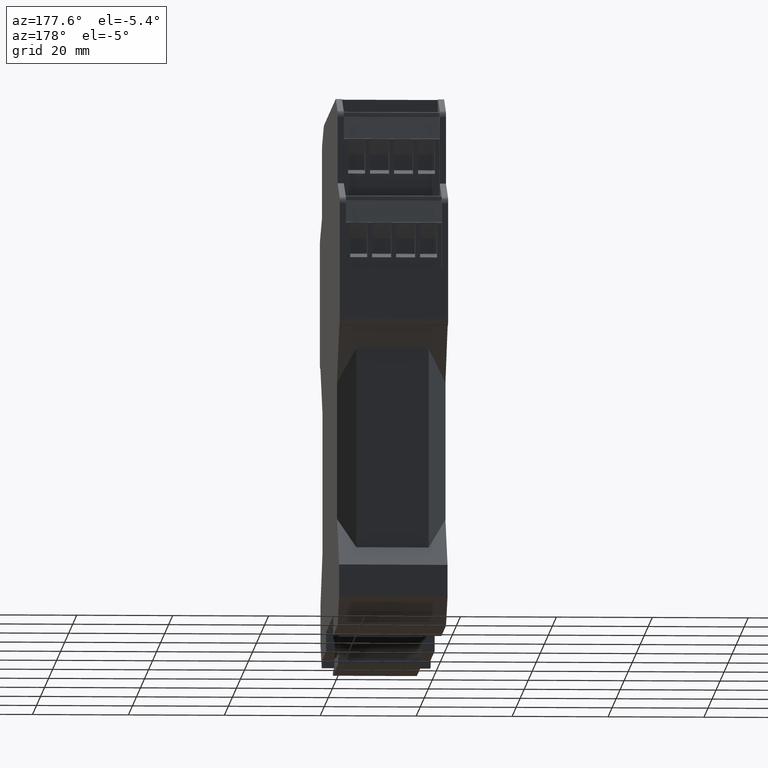
[diagram: clean part render]
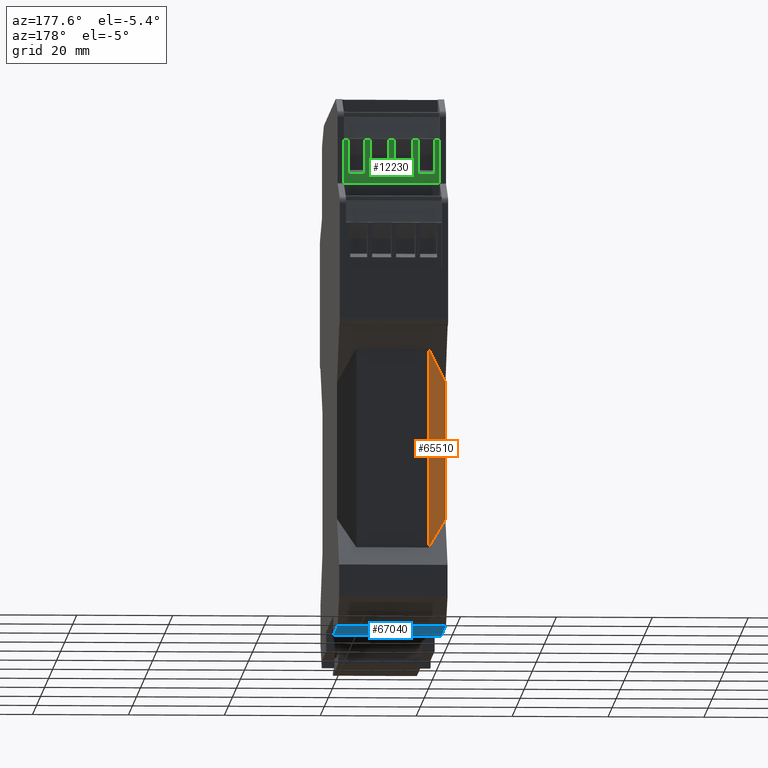
[diagram: same view with three faces highlighted in distinct colors, each labeled with its STEP entity id]
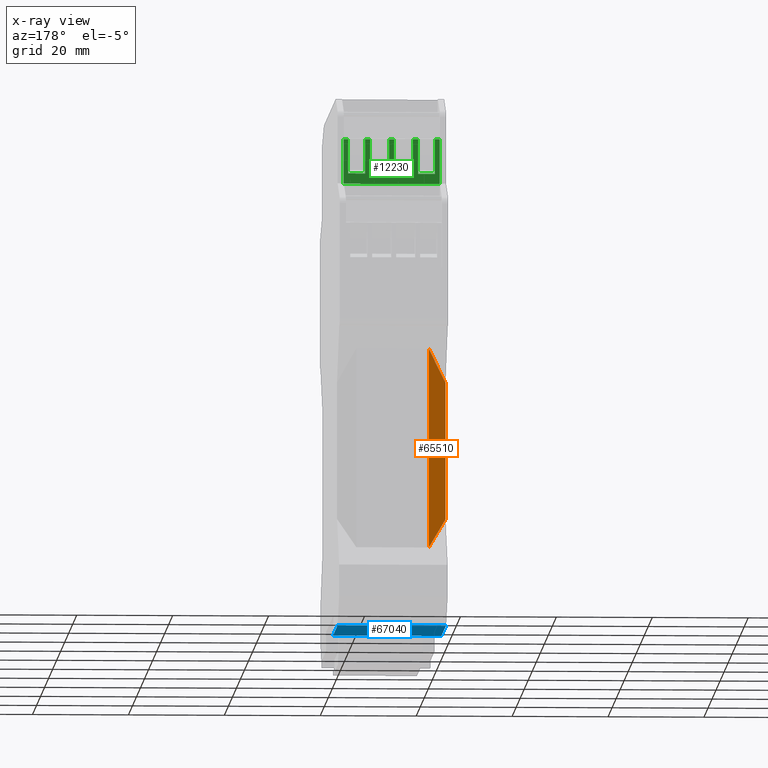
[diagram: x-ray of the same camera — body ghosted, the three highlighted faces saturated]
A machine part, auxiliary view with three faces highlighted in distinct colors.
The next image is the same camera in x-ray (body ghosted, the three faces saturated) — at least one of them is partly hidden behind the body in this view.
Their STEP definitions:

[orange] entity #65510 — the highlighted planar face has unit normal (0.866, -0.5, 0).
#5840=CARTESIAN_POINT('',(36.0500000000917,18.4999999999992,
7.105427357601E-15));
#5850=VERTEX_POINT('',#5840);
#5880=CARTESIAN_POINT('',(36.0500000000919,-7.99999999993773,
7.105427357601E-15));
#5890=DIRECTION('',(0.,1.,0.));
#5900=VECTOR('',#5890,1.);
#5910=LINE('',#5880,#5900);
#5920=CARTESIAN_POINT('',(36.0500000000917,47.1000000000001,
7.105427357601E-15));
#5930=VERTEX_POINT('',#5920);
#5940=EDGE_CURVE('',#5850,#5930,#5910,.T.);
#7250=CARTESIAN_POINT('',(-6.67910171614494E-13,11.049999999908,
-20.8134772043393));
#7260=DIRECTION('',(0.65465367070798,0.654653670707975,0.377964473009226
));
#7270=VECTOR('',#7260,1.);
#7280=LINE('',#7250,#7270);
#7290=CARTESIAN_POINT('',(42.5500000000901,53.5999999999984,
3.75277674973149));
#7300=VERTEX_POINT('',#7290);
#7310=EDGE_CURVE('',#5930,#7300,#7280,.T.);
#65280=CARTESIAN_POINT('',(13.2355117767439,53.7000000000007,
-13.1719509171734));
#65290=DIRECTION('',(-0.499999999999997,0.,0.86602540378444));
#65300=DIRECTION('',(0.86602540378444,0.,0.499999999999997));
#65310=AXIS2_PLACEMENT_3D('',#65280,#65290,#65300);
#65320=PLANE('',#65310);
#65330=ORIENTED_EDGE('',*,*,#7310,.T.);
#65340=ORIENTED_EDGE('',*,*,#5940,.T.);
#65350=CARTESIAN_POINT('',(-6.67910171614494E-13,54.5500000000849,
-20.8134772043393));
#65360=DIRECTION('',(-0.65465367070803,0.654653670707909,
-0.377964473009255));
#65370=VECTOR('',#65360,1.);
#65380=LINE('',#65350,#65370);
#65390=CARTESIAN_POINT('',(42.5500000000903,12.0000000000018,
3.75277674973165));
#65400=VERTEX_POINT('',#65390);
#65410=EDGE_CURVE('',#65400,#5850,#65380,.T.);
#65420=ORIENTED_EDGE('',*,*,#65410,.T.);
#65430=CARTESIAN_POINT('',(42.5500000000904,-7.99999999993773,
3.75277674973174));
#65440=DIRECTION('',(6.60000000000172E-15,-1.,3.8105117766525E-15));
#65450=VECTOR('',#65440,1.);
#65460=LINE('',#65430,#65450);
#65470=EDGE_CURVE('',#7300,#65400,#65460,.T.);
#65480=ORIENTED_EDGE('',*,*,#65470,.T.);
#65490=EDGE_LOOP('',(#65480,#65420,#65340,#65330));
#65500=FACE_OUTER_BOUND('',#65490,.T.);
#65510=ADVANCED_FACE('',(#65500),#65320,.F.);

[blue] entity #67040 — the highlighted planar face has unit normal (-0, -0, -1).
#2580=CARTESIAN_POINT('',(38.8380007636762,-3.99999999999967,22.6));
#2590=VERTEX_POINT('',#2580);
#2620=CARTESIAN_POINT('',(9.37568990868644E-11,-3.99999999999915,22.6));
#2630=DIRECTION('',(-1.,0.,0.));
#2640=VECTOR('',#2630,1.);
#2650=LINE('',#2620,#2640);
#2660=CARTESIAN_POINT('',(16.0000000000944,-3.99999999999915,22.6));
#2670=VERTEX_POINT('',#2660);
#2680=EDGE_CURVE('',#2590,#2670,#2650,.T.);
#5520=CARTESIAN_POINT('',(16.0000000000944,-3.99999999999915,
7.105427357601E-15));
#5530=VERTEX_POINT('',#5520);
#5560=CARTESIAN_POINT('',(-1.39195321935404E-11,-3.99999999999915,
3.5527136788005E-15));
#5570=DIRECTION('',(1.,0.,1.22460635382238E-16));
#5580=VECTOR('',#5570,1.);
#5590=LINE('',#5560,#5580);
#5600=CARTESIAN_POINT('',(38.8380007636769,-3.99999999999915,
7.105427357601E-15));
#5610=VERTEX_POINT('',#5600);
#5620=EDGE_CURVE('',#5530,#5610,#5590,.T.);
#66520=CARTESIAN_POINT('',(38.8380007636769,-3.99999999999915,26.4));
#66530=DIRECTION('',(0.,0.,-1.));
#66540=VECTOR('',#66530,1.);
#66550=LINE('',#66520,#66540);
#66560=EDGE_CURVE('',#2590,#5610,#66550,.T.);
#66880=CARTESIAN_POINT('',(16.0000000000944,-3.99999999999915,22.6));
#66890=DIRECTION('',(-0.,-1.,-0.));
#66900=DIRECTION('',(-1.,0.,0.));
#66910=AXIS2_PLACEMENT_3D('',#66880,#66890,#66900);
#66920=PLANE('',#66910);
#66930=ORIENTED_EDGE('',*,*,#66560,.F.);
#66940=ORIENTED_EDGE('',*,*,#5620,.T.);
#66950=CARTESIAN_POINT('',(16.0000000000944,-3.99999999999915,22.6));
#66960=DIRECTION('',(0.,0.,-1.));
#66970=VECTOR('',#66960,1.);
#66980=LINE('',#66950,#66970);
#66990=EDGE_CURVE('',#2670,#5530,#66980,.T.);
#67000=ORIENTED_EDGE('',*,*,#66990,.T.);
#67010=ORIENTED_EDGE('',*,*,#2680,.T.);
#67020=EDGE_LOOP('',(#67010,#67000,#66940,#66930));
#67030=FACE_OUTER_BOUND('',#67020,.T.);
#67040=ADVANCED_FACE('',(#67030),#66920,.T.);

[green] entity #12230 — the highlighted planar face has unit normal (0, 1, 0).
#8910=CARTESIAN_POINT('',(37.4499981250564,97.8499919592648,
21.3000000000003));
#8920=VERTEX_POINT('',#8910);
#8950=CARTESIAN_POINT('',(37.4499981250564,-7.99999999993773,
21.3000000000003));
#8960=DIRECTION('',(0.,1.,0.));
#8970=VECTOR('',#8960,1.);
#8980=LINE('',#8950,#8970);
#8990=CARTESIAN_POINT('',(37.4499981250564,88.5000000000553,
21.3000000000003));
#9000=VERTEX_POINT('',#8990);
#9010=EDGE_CURVE('',#9000,#8920,#8980,.T.);
#9550=CARTESIAN_POINT('',(37.4499981250564,88.5000000000553,
1.30000000000029));
#9560=VERTEX_POINT('',#9550);
#9590=CARTESIAN_POINT('',(37.4499981250564,-7.99999999993773,
1.30000000000029));
#9600=DIRECTION('',(0.,1.,0.));
#9610=VECTOR('',#9600,1.);
#9620=LINE('',#9590,#9610);
#9630=CARTESIAN_POINT('',(37.4499981250564,97.8499919592648,
1.30000000000029));
#9640=VERTEX_POINT('',#9630);
#9650=EDGE_CURVE('',#9560,#9640,#9620,.T.);
#10790=CARTESIAN_POINT('',(37.4499981250564,88.5000000000553,26.4));
#10800=DIRECTION('',(0.,0.,-1.));
#10810=VECTOR('',#10800,1.);
#10820=LINE('',#10790,#10810);
#10830=EDGE_CURVE('',#9000,#9560,#10820,.T.);
#10950=CARTESIAN_POINT('',(37.4499981250564,88.6499919592645,
21.2987820000001));
#10960=DIRECTION('',(1.,0.,0.));
#10970=DIRECTION('',(0.,-1.,-0.));
#10980=AXIS2_PLACEMENT_3D('',#10950,#10960,#10970);
#10990=PLANE('',#10980);
#11000=CARTESIAN_POINT('',(37.4499981250564,90.6666460474048,
18.7987820000001));
#11010=DIRECTION('',(0.,0.,-1.));
#11020=VECTOR('',#11010,1.);
#11030=LINE('',#11000,#11020);
#11040=CARTESIAN_POINT('',(37.4499981250564,90.6666460474048,
5.78621466776216));
#11050=VERTEX_POINT('',#11040);
#11060=CARTESIAN_POINT('',(37.4499981250564,90.6666460474048,
2.2399243448055));
#11070=VERTEX_POINT('',#11060);
#11080=EDGE_CURVE('',#11050,#11070,#11030,.T.);
#11090=ORIENTED_EDGE('',*,*,#11080,.F.);
#11100=CARTESIAN_POINT('',(37.4499981250564,50.7373029728664,
2.2399243448055));
#11110=DIRECTION('',(0.,1.,0.));
#11120=VECTOR('',#11110,1.);
#11130=LINE('',#11100,#11120);
#11140=CARTESIAN_POINT('',(37.4499981250564,97.8499919592648,
2.2399243448055));
#11150=VERTEX_POINT('',#11140);
#11160=EDGE_CURVE('',#11070,#11150,#11130,.T.);
#11170=ORIENTED_EDGE('',*,*,#11160,.F.);
#11180=CARTESIAN_POINT('',(37.4499981250564,97.8499919592648,
21.2987820000001));
#11190=DIRECTION('',(0.,0.,-1.));
#11200=VECTOR('',#11190,1.);
#11210=LINE('',#11180,#11200);
#11220=EDGE_CURVE('',#11150,#9640,#11210,.T.);
#11230=ORIENTED_EDGE('',*,*,#11220,.F.);
#11240=ORIENTED_EDGE('',*,*,#9650,.T.);
#11250=ORIENTED_EDGE('',*,*,#10830,.T.);
#11260=ORIENTED_EDGE('',*,*,#9010,.F.);
#11270=CARTESIAN_POINT('',(37.4499981250564,97.8499919592648,
20.3576396551947));
#11280=VERTEX_POINT('',#11270);
#11290=EDGE_CURVE('',#8920,#11280,#11210,.T.);
#11300=ORIENTED_EDGE('',*,*,#11290,.F.);
#11310=CARTESIAN_POINT('',(37.4499981250564,50.7373029728664,
20.3576396551947));
#11320=DIRECTION('',(0.,-1.,-0.));
#11330=VECTOR('',#11320,1.);
#11340=LINE('',#11310,#11330);
#11350=CARTESIAN_POINT('',(37.4499981250564,90.6666460474048,
20.3576396551947));
#11360=VERTEX_POINT('',#11350);
#11370=EDGE_CURVE('',#11280,#11360,#11340,.T.);
#11380=ORIENTED_EDGE('',*,*,#11370,.F.);
#11390=CARTESIAN_POINT('',(37.4499981250564,90.6666460474048,
18.7987820000001));
#11400=DIRECTION('',(0.,0.,-1.));
#11410=VECTOR('',#11400,1.);
#11420=LINE('',#11390,#11410);
#11430=CARTESIAN_POINT('',(37.4499981250564,90.6666460474048,
16.811349332238));
#11440=VERTEX_POINT('',#11430);
#11450=EDGE_CURVE('',#11360,#11440,#11420,.T.);
#11460=ORIENTED_EDGE('',*,*,#11450,.F.);
#11470=CARTESIAN_POINT('',(37.4499981250564,50.7373029728664,
16.811349332238));
#11480=DIRECTION('',(0.,1.,0.));
#11490=VECTOR('',#11480,1.);
#11500=LINE('',#11470,#11490);
#11510=CARTESIAN_POINT('',(37.4499981250564,97.8499919592648,
16.811349332238));
#11520=VERTEX_POINT('',#11510);
#11530=EDGE_CURVE('',#11440,#11520,#11500,.T.);
#11540=ORIENTED_EDGE('',*,*,#11530,.F.);
#11550=CARTESIAN_POINT('',(37.4499981250564,97.8499919592648,
15.7862146677622));
#11560=VERTEX_POINT('',#11550);
#11570=EDGE_CURVE('',#11520,#11560,#11210,.T.);
#11580=ORIENTED_EDGE('',*,*,#11570,.F.);
#11590=CARTESIAN_POINT('',(37.4499981250564,50.7373029728664,
15.7862146677622));
#11600=DIRECTION('',(0.,-1.,-0.));
#11610=VECTOR('',#11600,1.);
#11620=LINE('',#11590,#11610);
#11630=CARTESIAN_POINT('',(37.4499981250564,90.6666460474048,
15.7862146677622));
#11640=VERTEX_POINT('',#11630);
#11650=EDGE_CURVE('',#11560,#11640,#11620,.T.);
#11660=ORIENTED_EDGE('',*,*,#11650,.F.);
#11670=CARTESIAN_POINT('',(37.4499981250564,90.6666460474048,
18.7987820000001));
#11680=DIRECTION('',(0.,0.,1.));
#11690=VECTOR('',#11680,1.);
#11700=LINE('',#11670,#11690);
#11710=CARTESIAN_POINT('',(37.4499981250564,90.6666460474048,
11.811349332238));
#11720=VERTEX_POINT('',#11710);
#11730=EDGE_CURVE('',#11720,#11640,#11700,.T.);
#11740=ORIENTED_EDGE('',*,*,#11730,.T.);
#11750=CARTESIAN_POINT('',(37.4499981250564,50.7373029728664,
11.811349332238));
#11760=DIRECTION('',(0.,-1.,-0.));
#11770=VECTOR('',#11760,1.);
#11780=LINE('',#11750,#11770);
#11790=CARTESIAN_POINT('',(37.4499981250564,97.8499919592648,
11.811349332238));
#11800=VERTEX_POINT('',#11790);
#11810=EDGE_CURVE('',#11800,#11720,#11780,.T.);
#11820=ORIENTED_EDGE('',*,*,#11810,.T.);
#11830=CARTESIAN_POINT('',(37.4499981250564,97.8499919592648,
10.7862146677622));
#11840=VERTEX_POINT('',#11830);
#11850=EDGE_CURVE('',#11800,#11840,#11210,.T.);
#11860=ORIENTED_EDGE('',*,*,#11850,.F.);
#11870=CARTESIAN_POINT('',(37.4499981250564,50.7373029728664,
10.7862146677622));
#11880=DIRECTION('',(0.,-1.,-0.));
#11890=VECTOR('',#11880,1.);
#11900=LINE('',#11870,#11890);
#11910=CARTESIAN_POINT('',(37.4499981250564,90.6666460474048,
10.7862146677622));
#11920=VERTEX_POINT('',#11910);
#11930=EDGE_CURVE('',#11840,#11920,#11900,.T.);
#11940=ORIENTED_EDGE('',*,*,#11930,.F.);
#11950=CARTESIAN_POINT('',(37.4499981250564,90.6666460474048,
18.7987820000001));
#11960=DIRECTION('',(0.,0.,-1.));
#11970=VECTOR('',#11960,1.);
#11980=LINE('',#11950,#11970);
#11990=CARTESIAN_POINT('',(37.4499981250564,90.6666460474048,
6.81134933223804));
#12000=VERTEX_POINT('',#11990);
#12010=EDGE_CURVE('',#11920,#12000,#11980,.T.);
#12020=ORIENTED_EDGE('',*,*,#12010,.F.);
#12030=CARTESIAN_POINT('',(37.4499981250564,50.7373029728664,
6.81134933223804));
#12040=DIRECTION('',(0.,1.,0.));
#12050=VECTOR('',#12040,1.);
#12060=LINE('',#12030,#12050);
#12070=CARTESIAN_POINT('',(37.4499981250564,97.8499919592648,
6.81134933223804));
#12080=VERTEX_POINT('',#12070);
#12090=EDGE_CURVE('',#12000,#12080,#12060,.T.);
#12100=ORIENTED_EDGE('',*,*,#12090,.F.);
#12110=CARTESIAN_POINT('',(37.4499981250564,97.8499919592648,
5.78621466776216));
#12120=VERTEX_POINT('',#12110);
#12130=EDGE_CURVE('',#12080,#12120,#11210,.T.);
#12140=ORIENTED_EDGE('',*,*,#12130,.F.);
#12150=CARTESIAN_POINT('',(37.4499981250564,50.7373029728664,
5.78621466776216));
#12160=DIRECTION('',(0.,-1.,-0.));
#12170=VECTOR('',#12160,1.);
#12180=LINE('',#12150,#12170);
#12190=EDGE_CURVE('',#12120,#11050,#12180,.T.);
#12200=ORIENTED_EDGE('',*,*,#12190,.F.);
#12210=EDGE_LOOP('',(#12200,#12140,#12100,#12020,#11940,#11860,#11820,
#11740,#11660,#11580,#11540,#11460,#11380,#11300,#11260,#11250,#11240,
#11230,#11170,#11090));
#12220=FACE_OUTER_BOUND('',#12210,.T.);
#12230=ADVANCED_FACE('',(#12220),#10990,.T.);